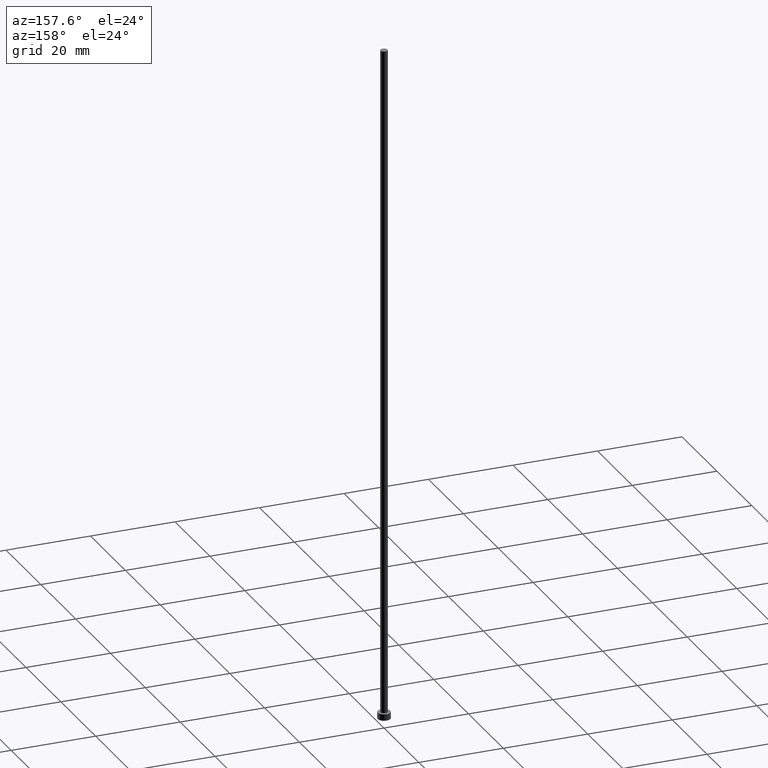
[diagram: clean part render]
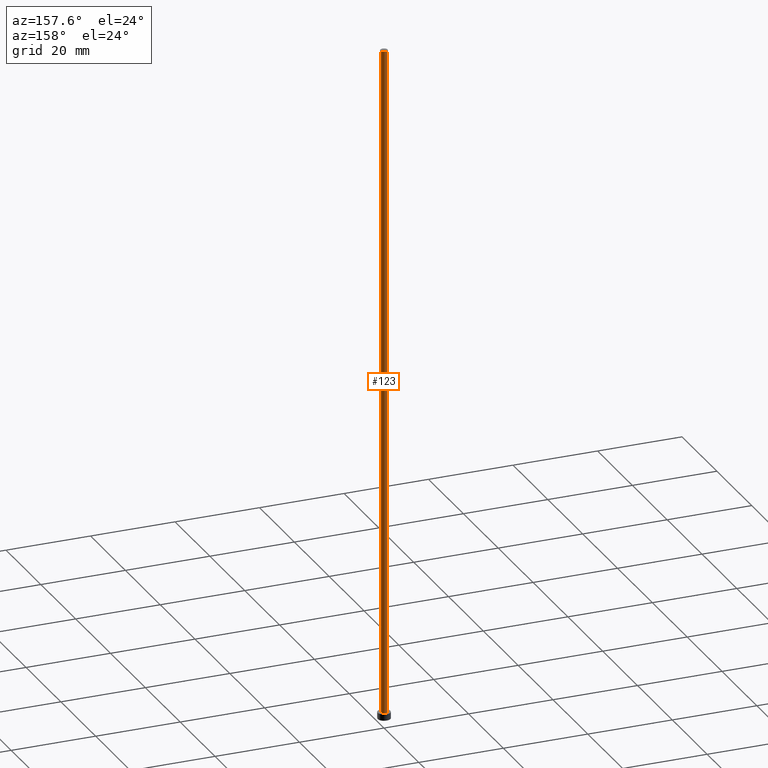
[diagram: same view with one face highlighted and labeled with its STEP entity id]
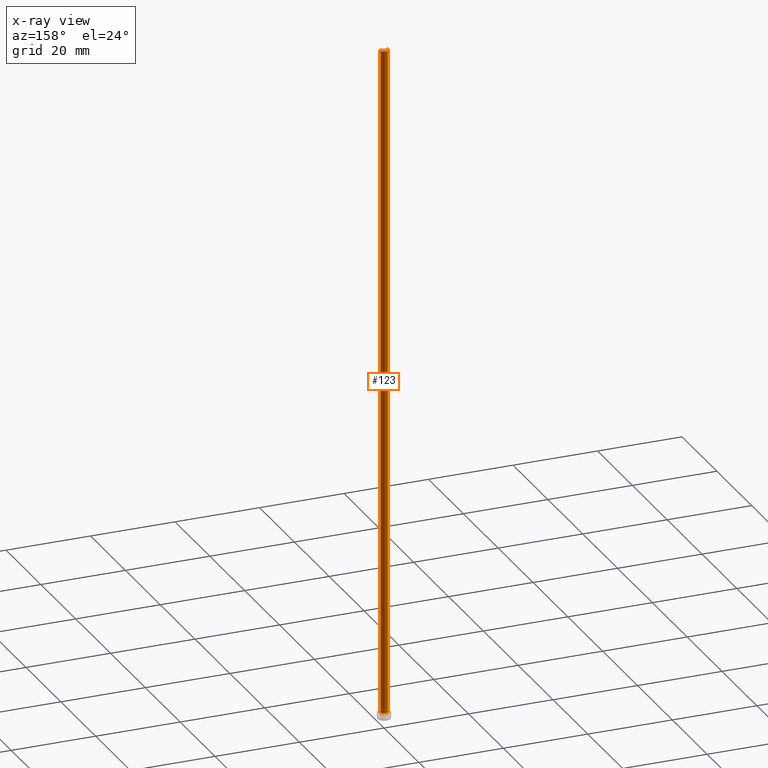
[diagram: x-ray of the same camera — body ghosted, the highlighted face saturated]
A machine part, auxiliary view. The second image highlights one B-rep face of the part: STEP entity #123.
The next image is the same camera in x-ray: the body ghosted, the highlighted face saturated — about 0% of this face is hidden behind the body in this view.
In plain terms, the highlighted cylindrical surface (edge-blend (fillet) strip) has radius 0.85 mm, axis along (-0, -0, -1).
Its self-contained STEP definition (entity closure, byte-faithful):
#1 = ORIENTED_EDGE ( 'NONE', *, *, #146, .F. ) ;
#4 = CARTESIAN_POINT ( 'NONE',  ( 0.8499999999999999778, 1.040949779275250140E-16, 160.0000000000000000 ) ) ;
#11 = DIRECTION ( 'NONE',  ( 1.000000000000000000, 0.000000000000000000, 0.000000000000000000 ) ) ;
#15 = VERTEX_POINT ( 'NONE', #95 ) ;
#24 = DIRECTION ( 'NONE',  ( -1.000000000000000000, 0.000000000000000000, 0.000000000000000000 ) ) ;
#35 = ORIENTED_EDGE ( 'NONE', *, *, #227, .F. ) ;
#38 = DIRECTION ( 'NONE',  ( -0.000000000000000000, -0.000000000000000000, -1.000000000000000000 ) ) ;
#46 = VECTOR ( 'NONE', #97, 1000.000000000000000 ) ;
#66 = CARTESIAN_POINT ( 'NONE',  ( 0.8499999999999999778, 1.040949779275250140E-16, 1.500000000000000000 ) ) ;
#72 = EDGE_LOOP ( 'NONE', ( #35, #114, #94, #1 ) ) ;
#76 = VERTEX_POINT ( 'NONE', #4 ) ;
#77 = CYLINDRICAL_SURFACE ( 'NONE', #247, 0.8499999999999999778 ) ;
#80 = CARTESIAN_POINT ( 'NONE',  ( -0.8499999999999999778, 0.000000000000000000, 160.0000000000000000 ) ) ;
#90 = VERTEX_POINT ( 'NONE', #218 ) ;
#94 = ORIENTED_EDGE ( 'NONE', *, *, #252, .T. ) ;
#95 = CARTESIAN_POINT ( 'NONE',  ( -0.8499999999999999778, 0.000000000000000000, 160.0000000000000000 ) ) ;
#97 = DIRECTION ( 'NONE',  ( -0.000000000000000000, -0.000000000000000000, -1.000000000000000000 ) ) ;
#98 = LINE ( 'NONE', #80, #121 ) ;
#105 = CIRCLE ( 'NONE', #250, 0.8499999999999999778 ) ;
#108 = DIRECTION ( 'NONE',  ( 1.000000000000000000, 0.000000000000000000, 0.000000000000000000 ) ) ;
#112 = AXIS2_PLACEMENT_3D ( 'NONE', #150, #170, #11 ) ;
#114 = ORIENTED_EDGE ( 'NONE', *, *, #160, .T. ) ;
#120 = LINE ( 'NONE', #205, #46 ) ;
#121 = VECTOR ( 'NONE', #201, 1000.000000000000000 ) ;
#123 = ADVANCED_FACE ( 'NONE', ( #144 ), #77, .T. ) ;
#144 = FACE_OUTER_BOUND ( 'NONE', #72, .T. ) ;
#146 = EDGE_CURVE ( 'NONE', #15, #90, #98, .T. ) ;
#150 = CARTESIAN_POINT ( 'NONE',  ( 0.000000000000000000, 0.000000000000000000, 1.500000000000000000 ) ) ;
#152 = DIRECTION ( 'NONE',  ( 0.000000000000000000, 0.000000000000000000, 1.000000000000000000 ) ) ;
#160 = EDGE_CURVE ( 'NONE', #76, #255, #120, .T. ) ;
#161 = CARTESIAN_POINT ( 'NONE',  ( 0.000000000000000000, 0.000000000000000000, 160.0000000000000000 ) ) ;
#170 = DIRECTION ( 'NONE',  ( 0.000000000000000000, 0.000000000000000000, 1.000000000000000000 ) ) ;
#188 = CARTESIAN_POINT ( 'NONE',  ( 0.000000000000000000, 0.000000000000000000, 160.0000000000000000 ) ) ;
#201 = DIRECTION ( 'NONE',  ( -0.000000000000000000, -0.000000000000000000, -1.000000000000000000 ) ) ;
#205 = CARTESIAN_POINT ( 'NONE',  ( 0.8499999999999999778, 1.040949779275250140E-16, 160.0000000000000000 ) ) ;
#218 = CARTESIAN_POINT ( 'NONE',  ( -0.8499999999999999778, 0.000000000000000000, 1.500000000000000000 ) ) ;
#227 = EDGE_CURVE ( 'NONE', #76, #15, #105, .T. ) ;
#247 = AXIS2_PLACEMENT_3D ( 'NONE', #161, #38, #24 ) ;
#248 = CIRCLE ( 'NONE', #112, 0.8499999999999999778 ) ;
#250 = AXIS2_PLACEMENT_3D ( 'NONE', #188, #152, #108 ) ;
#252 = EDGE_CURVE ( 'NONE', #255, #90, #248, .T. ) ;
#255 = VERTEX_POINT ( 'NONE', #66 ) ;